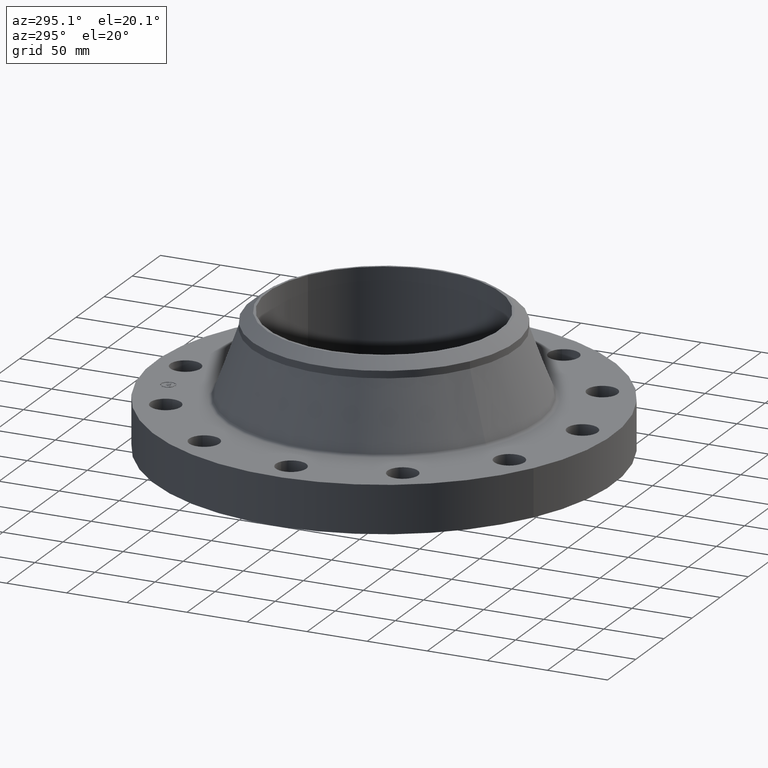
[diagram: clean part render]
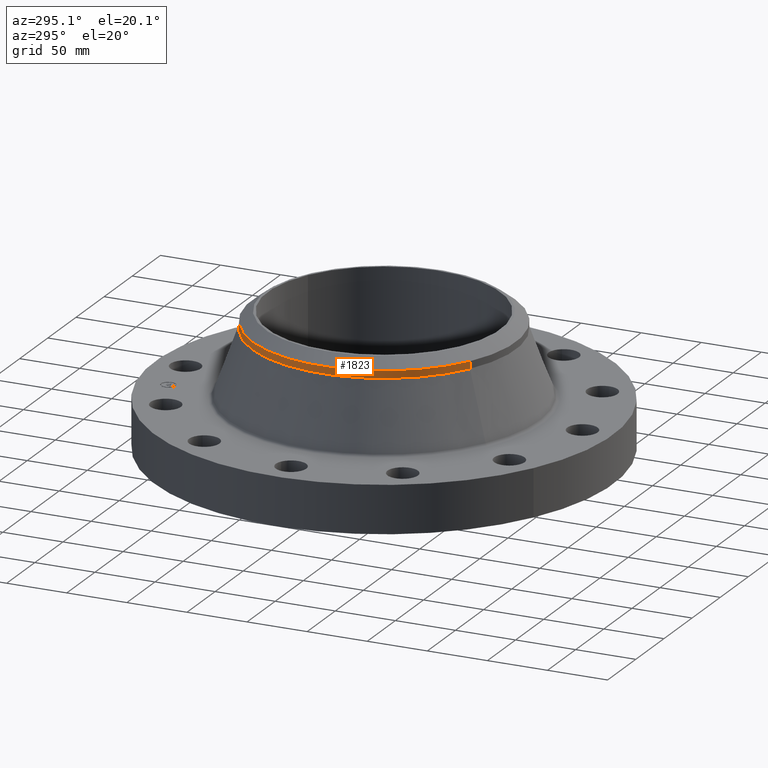
[diagram: same view with one face highlighted and labeled with its STEP entity id]
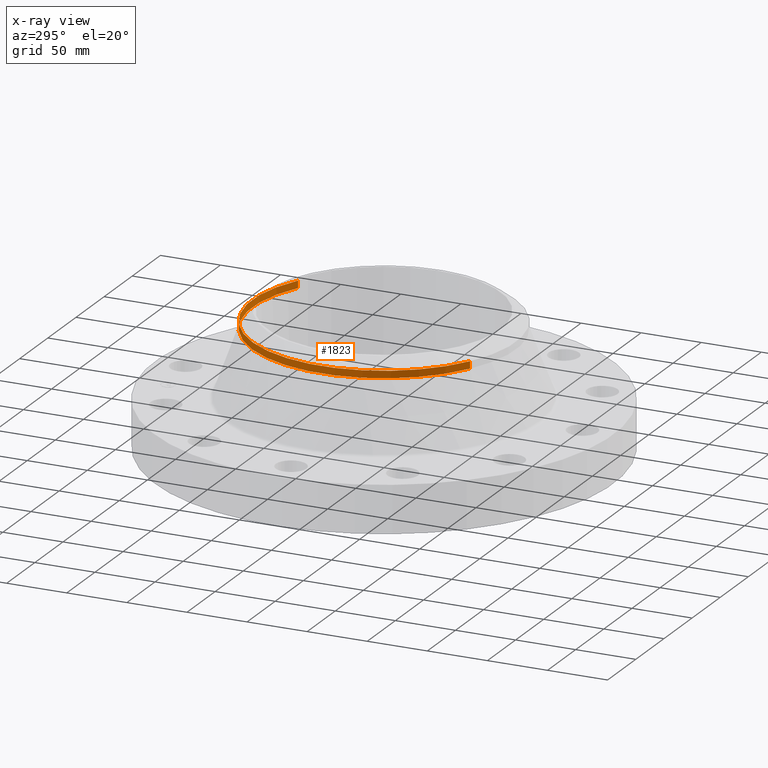
[diagram: x-ray of the same camera — body ghosted, the highlighted face saturated]
A machine part, auxiliary view. The second image highlights one B-rep face of the part: STEP entity #1823.
The next image is the same camera in x-ray: the body ghosted, the highlighted face saturated — about 0% of this face is hidden behind the body in this view.
In plain terms, the highlighted cylindrical surface (partial cylindrical patch) has radius 109.601 mm, axis along (-0, 0, -1).
Its self-contained STEP definition (entity closure, byte-faithful):
#1493=AXIS2_PLACEMENT_3D('Circle Axis2P3D',#1491,#1492,$) ;
#1785=AXIS2_PLACEMENT_3D('Cylinder Axis2P3D',#1782,#1783,#1784) ;
#1803=AXIS2_PLACEMENT_3D('Circle Axis2P3D',#1801,#1802,$) ;
#1488=CARTESIAN_POINT('Vertex',(-2.06872119909,-3.78676875457,3.75861716399)) ;
#1491=CARTESIAN_POINT('Axis2P3D Location',(0.,0.,3.75861716399)) ;
#1495=CARTESIAN_POINT('Vertex',(2.06872119909,3.78676875457,3.75861716399)) ;
#1782=CARTESIAN_POINT('Axis2P3D Location',(0.,0.,2.00350000001)) ;
#1787=CARTESIAN_POINT('Line Origine',(2.06872119909,3.78676875457,3.8767274002)) ;
#1791=CARTESIAN_POINT('Vertex',(2.06872119909,3.78676875457,3.99483763641)) ;
#1794=CARTESIAN_POINT('Line Origine',(-2.06872119909,-3.78676875457,3.8767274002)) ;
#1798=CARTESIAN_POINT('Vertex',(-2.06872119909,-3.78676875457,3.99483763641)) ;
#1801=CARTESIAN_POINT('Axis2P3D Location',(0.,0.,3.99483763641)) ;
#1805=CARTESIAN_POINT('Vertex',(-2.06872119909,3.78676875457,3.99483763641)) ;
#1809=CARTESIAN_POINT('Control Point',(-2.06872119909,3.78676875457,3.99483763641)) ;
#1810=CARTESIAN_POINT('Control Point',(-1.31136744818,4.20051299439,3.99483763641)) ;
#1811=CARTESIAN_POINT('Control Point',(-0.450585778487,4.42505314185,3.99483763642)) ;
#1812=CARTESIAN_POINT('Control Point',(0.450585778483,4.42505314185,3.99483763642)) ;
#1813=CARTESIAN_POINT('Control Point',(1.31136744817,4.20051299439,3.99483763643)) ;
#1814=CARTESIAN_POINT('Control Point',(2.06872119909,3.78676875457,3.99483763643)) ;
#1492=DIRECTION('Axis2P3D Direction',(-0.,0.,-0.0393700787402)) ;
#1783=DIRECTION('Axis2P3D Direction',(-0.,0.,-0.0393700787402)) ;
#1784=DIRECTION('Axis2P3D XDirection',(-0.0188750212049,-0.0345504945626,0.)) ;
#1788=DIRECTION('Vector Direction',(0.,0.,-0.0393700787402)) ;
#1795=DIRECTION('Vector Direction',(0.,0.,-0.0393700787402)) ;
#1802=DIRECTION('Axis2P3D Direction',(-0.,0.,-0.0393700787402)) ;
#1789=VECTOR('Line Direction',#1788,0.0393700787402) ;
#1796=VECTOR('Line Direction',#1795,0.0393700787402) ;
#1817=ORIENTED_EDGE('',*,*,#1793,.F.) ;
#1818=ORIENTED_EDGE('',*,*,#1497,.F.) ;
#1819=ORIENTED_EDGE('',*,*,#1800,.T.) ;
#1820=ORIENTED_EDGE('',*,*,#1807,.F.) ;
#1821=ORIENTED_EDGE('',*,*,#1815,.T.) ;
#1823=ADVANCED_FACE('PartBody',(#1822),#1786,.T.) ;
#1808=B_SPLINE_CURVE_WITH_KNOTS('',5,(#1809,#1810,#1811,#1812,#1813,#1814),.UNSPECIFIED.,.F.,.U.,(6,6),(-54.8005000003,54.8005000003),.UNSPECIFIED.) ;
#1494=CIRCLE('generated circle',#1493,4.31500000002) ;
#1804=CIRCLE('generated circle',#1803,4.31500000002) ;
#1786=CYLINDRICAL_SURFACE('generated cylinder',#1785,4.31500000002) ;
#1497=EDGE_CURVE('',#1489,#1496,#1494,.T.) ;
#1793=EDGE_CURVE('',#1496,#1792,#1790,.F.) ;
#1800=EDGE_CURVE('',#1489,#1799,#1797,.F.) ;
#1807=EDGE_CURVE('',#1806,#1799,#1804,.F.) ;
#1815=EDGE_CURVE('',#1806,#1792,#1808,.T.) ;
#1816=EDGE_LOOP('',(#1817,#1818,#1819,#1820,#1821)) ;
#1822=FACE_OUTER_BOUND('',#1816,.T.) ;
#1790=LINE('Line',#1787,#1789) ;
#1797=LINE('Line',#1794,#1796) ;
#1489=VERTEX_POINT('',#1488) ;
#1496=VERTEX_POINT('',#1495) ;
#1792=VERTEX_POINT('',#1791) ;
#1799=VERTEX_POINT('',#1798) ;
#1806=VERTEX_POINT('',#1805) ;